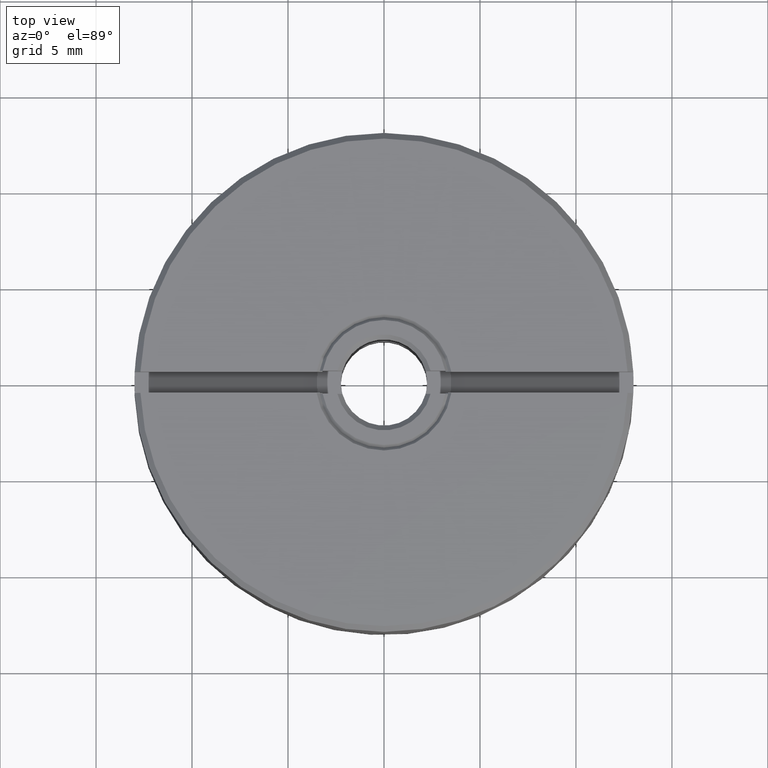
[diagram: clean part render]
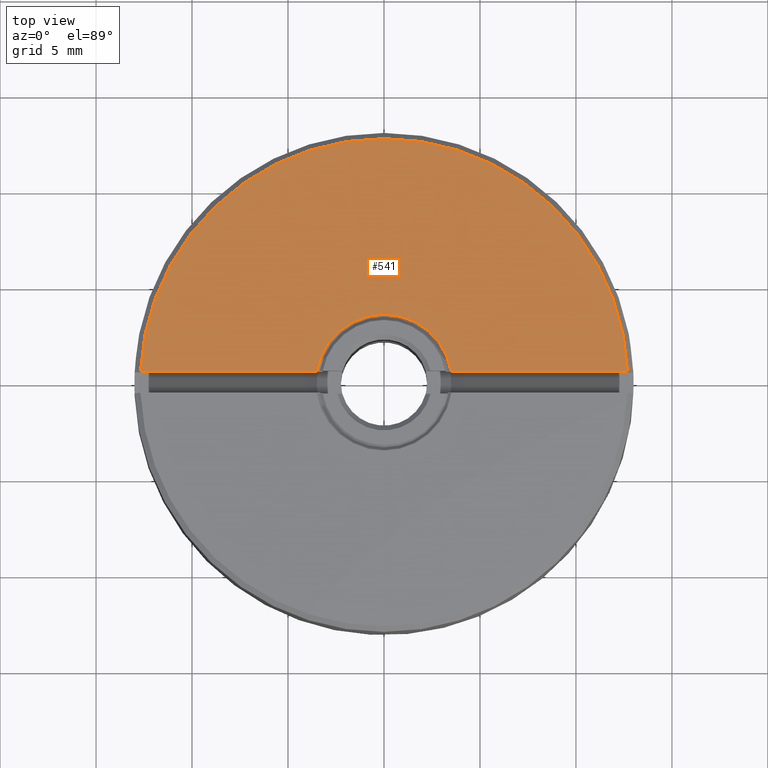
[diagram: same view with one face highlighted and labeled with its STEP entity id]
A machine part, top view. The second image highlights one B-rep face of the part: STEP entity #541.
In plain terms, the highlighted planar face has unit normal (0, 0, 1).
Its self-contained STEP definition (entity closure, byte-faithful):
#55 = VECTOR ( 'NONE', #181, 1000.000000000000000 ) ;
#84 = EDGE_CURVE ( 'NONE', #1240, #1581, #786, .T. ) ;
#99 = FACE_OUTER_BOUND ( 'NONE', #1136, .T. ) ;
#143 = DIRECTION ( 'NONE',  ( -1.000000000000000000, 0.000000000000000000, 0.000000000000000000 ) ) ;
#181 = DIRECTION ( 'NONE',  ( 1.000000000000000000, 0.000000000000000000, -0.000000000000000000 ) ) ;
#231 = AXIS2_PLACEMENT_3D ( 'NONE', #1100, #1078, #1566 ) ;
#248 = ORIENTED_EDGE ( 'NONE', *, *, #494, .T. ) ;
#288 = CARTESIAN_POINT ( 'NONE',  ( 12.68808496188450441, 0.5500000000000000444, 5.000000000000002665 ) ) ;
#305 = CARTESIAN_POINT ( 'NONE',  ( 0.000000000000000000, 0.5500000000000000444, 5.000000000000000000 ) ) ;
#330 = CARTESIAN_POINT ( 'NONE',  ( -3.507135583411576718, 0.5500000000000000444, 4.999999999981034726 ) ) ;
#375 = ORIENTED_EDGE ( 'NONE', *, *, #403, .T. ) ;
#403 = EDGE_CURVE ( 'NONE', #1240, #971, #435, .T. ) ;
#415 = DIRECTION ( 'NONE',  ( 1.000000000000000000, 0.000000000000000000, 0.000000000000000000 ) ) ;
#435 = LINE ( 'NONE', #803, #736 ) ;
#494 = EDGE_CURVE ( 'NONE', #696, #1581, #1541, .T. ) ;
#541 = ADVANCED_FACE ( 'NONE', ( #99 ), #1312, .T. ) ;
#560 = CARTESIAN_POINT ( 'NONE',  ( 0.000000000000000000, 0.000000000000000000, 4.999999999995453415 ) ) ;
#696 = VERTEX_POINT ( 'NONE', #1358 ) ;
#724 = CARTESIAN_POINT ( 'NONE',  ( -12.68808496188450619, 0.5500000000000000444, 5.000000000000000888 ) ) ;
#736 = VECTOR ( 'NONE', #925, 1000.000000000000000 ) ;
#740 = CIRCLE ( 'NONE', #920, 3.550000000075216100 ) ;
#772 = CARTESIAN_POINT ( 'NONE',  ( 0.000000000000000000, 0.000000000000000000, 5.000000000000001776 ) ) ;
#786 = CIRCLE ( 'NONE', #1139, 12.69999999999998863 ) ;
#803 = CARTESIAN_POINT ( 'NONE',  ( 0.000000000000000000, 0.5500000000000000444, 5.000000000000000000 ) ) ;
#809 = DIRECTION ( 'NONE',  ( -0.000000000000000000, 0.000000000000000000, -1.000000000000000000 ) ) ;
#885 = EDGE_CURVE ( 'NONE', #971, #696, #740, .T. ) ;
#920 = AXIS2_PLACEMENT_3D ( 'NONE', #560, #809, #415 ) ;
#925 = DIRECTION ( 'NONE',  ( 1.000000000000000000, 0.000000000000000000, -0.000000000000000000 ) ) ;
#971 = VERTEX_POINT ( 'NONE', #330 ) ;
#1075 = ORIENTED_EDGE ( 'NONE', *, *, #84, .F. ) ;
#1078 = DIRECTION ( 'NONE',  ( 0.000000000000000000, 0.000000000000000000, 1.000000000000000000 ) ) ;
#1100 = CARTESIAN_POINT ( 'NONE',  ( 0.000000000000000000, 0.000000000000000000, 5.000000000000000000 ) ) ;
#1136 = EDGE_LOOP ( 'NONE', ( #375, #1407, #248, #1075 ) ) ;
#1139 = AXIS2_PLACEMENT_3D ( 'NONE', #772, #1252, #143 ) ;
#1240 = VERTEX_POINT ( 'NONE', #724 ) ;
#1252 = DIRECTION ( 'NONE',  ( 0.000000000000000000, 0.000000000000000000, -1.000000000000000000 ) ) ;
#1312 = PLANE ( 'NONE',  #231 ) ;
#1358 = CARTESIAN_POINT ( 'NONE',  ( 3.507135583411576718, 0.5500000000000000444, 4.999999999981034726 ) ) ;
#1407 = ORIENTED_EDGE ( 'NONE', *, *, #885, .T. ) ;
#1541 = LINE ( 'NONE', #305, #55 ) ;
#1566 = DIRECTION ( 'NONE',  ( 1.000000000000000000, 0.000000000000000000, -0.000000000000000000 ) ) ;
#1581 = VERTEX_POINT ( 'NONE', #288 ) ;